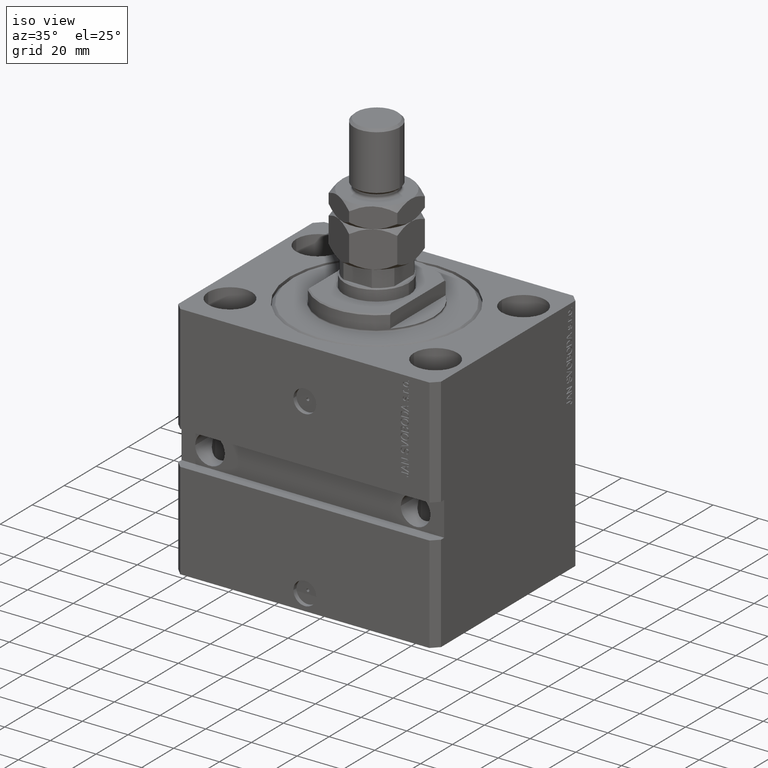
[diagram: clean part render]
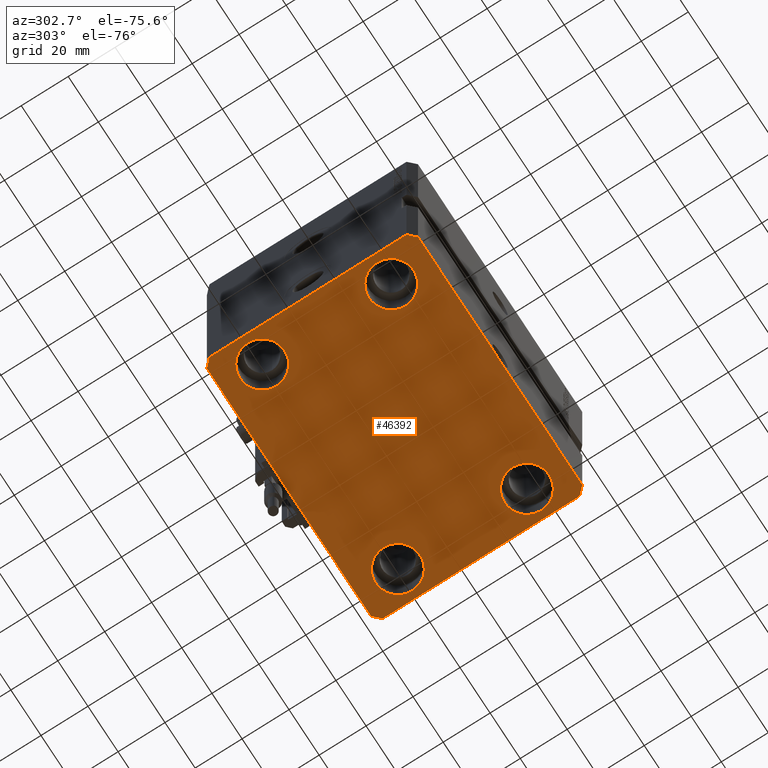
[diagram: tour spotlight — one face highlighted and labeled with its STEP entity id]
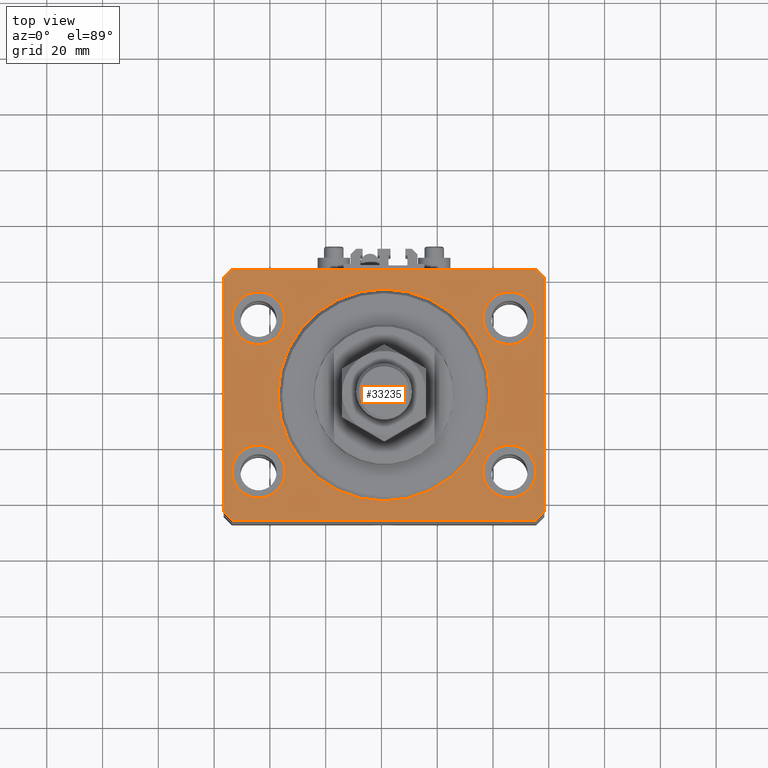
[diagram: tour spotlight — one face highlighted and labeled with its STEP entity id]
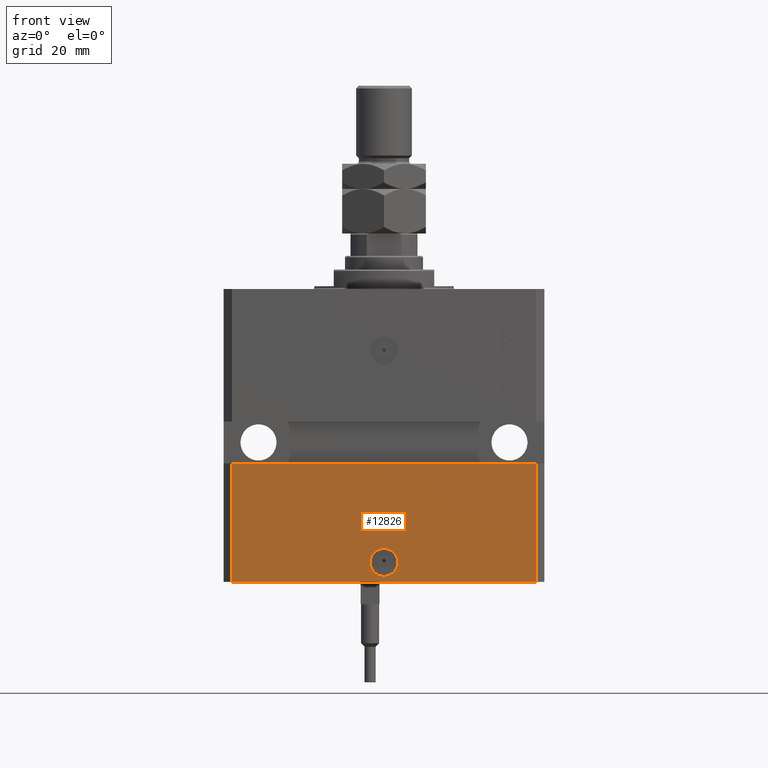
[diagram: tour spotlight — one face highlighted and labeled with its STEP entity id]
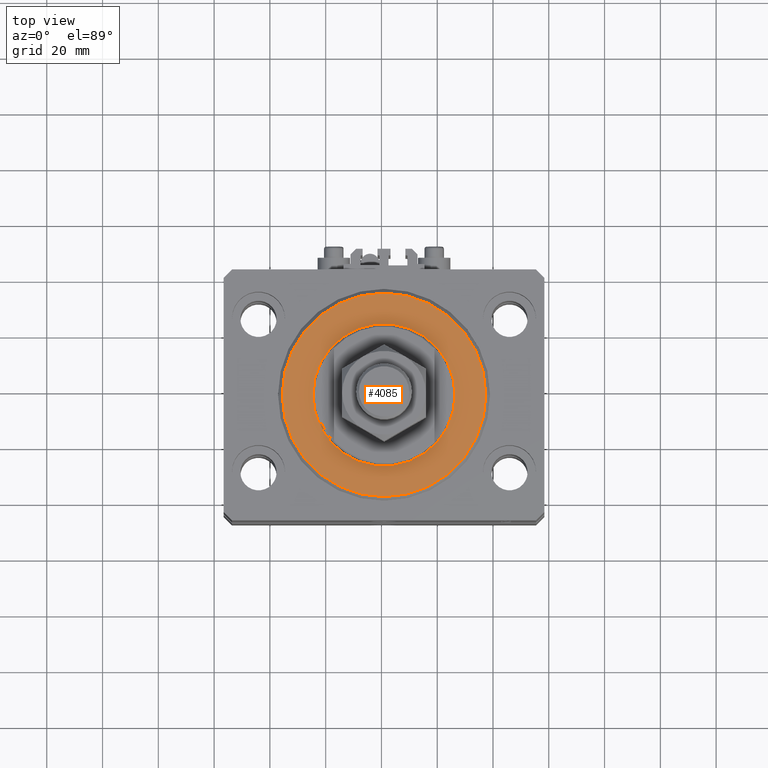
[diagram: tour spotlight — one face highlighted and labeled with its STEP entity id]
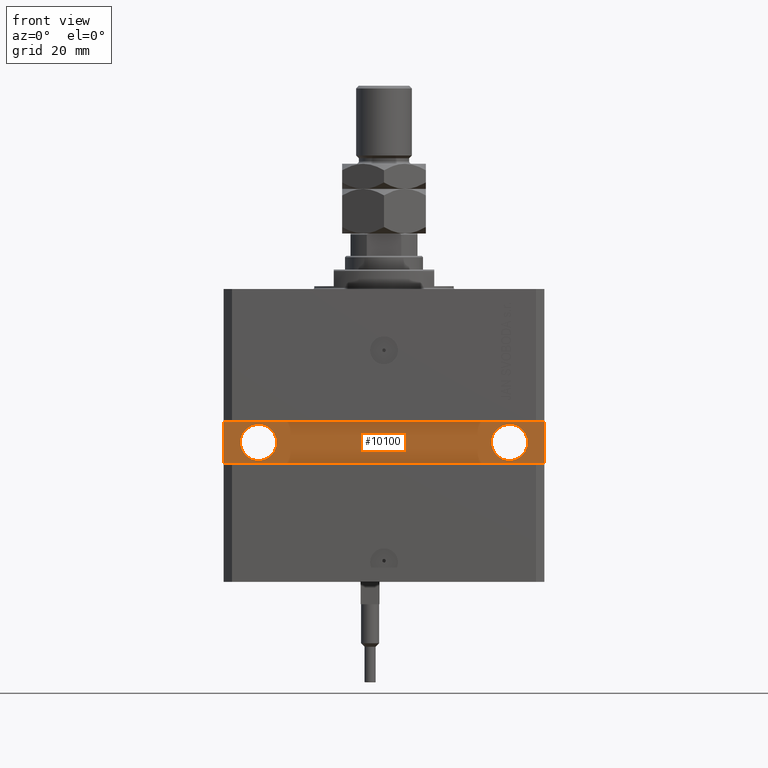
[diagram: tour spotlight — one face highlighted and labeled with its STEP entity id]
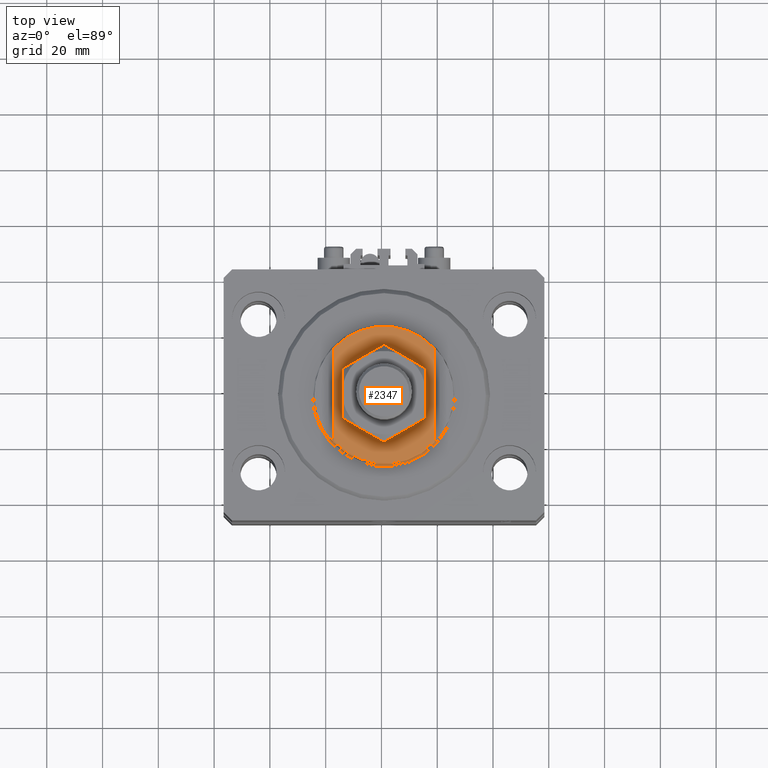
[diagram: tour spotlight — one face highlighted and labeled with its STEP entity id]
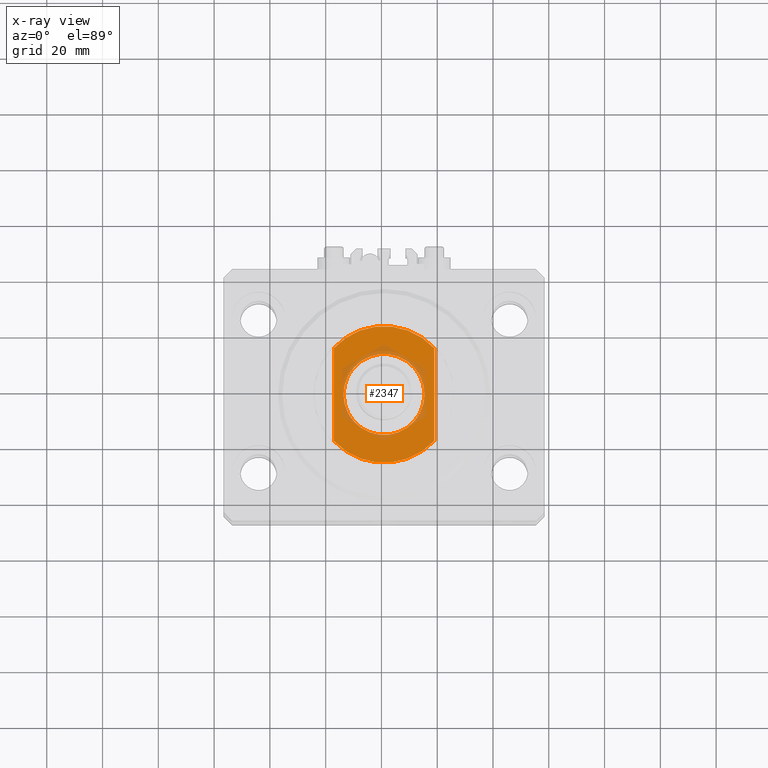
[diagram: x-ray of the same camera — body ghosted, this tour face saturated]
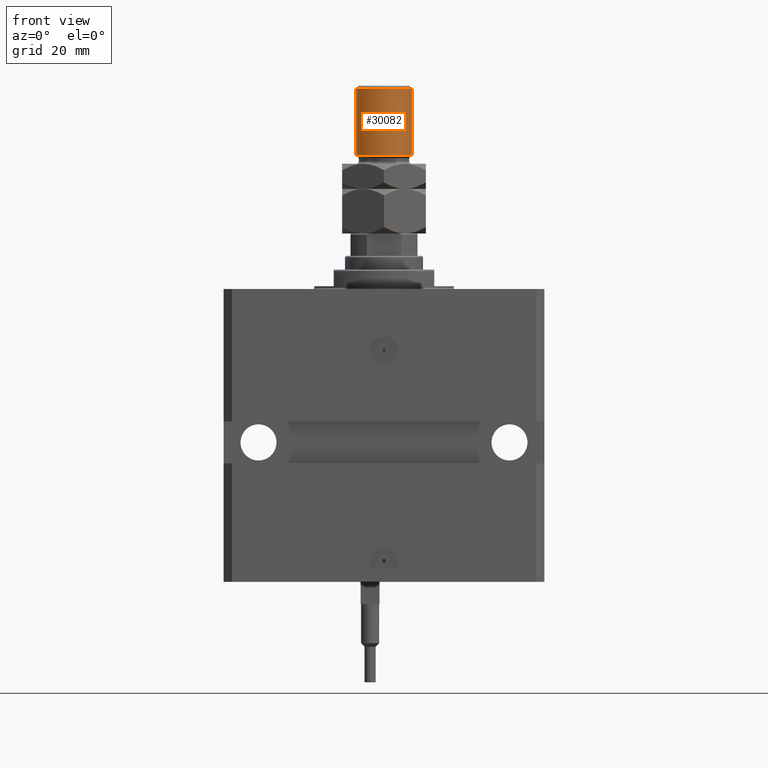
[diagram: tour spotlight — one face highlighted and labeled with its STEP entity id]
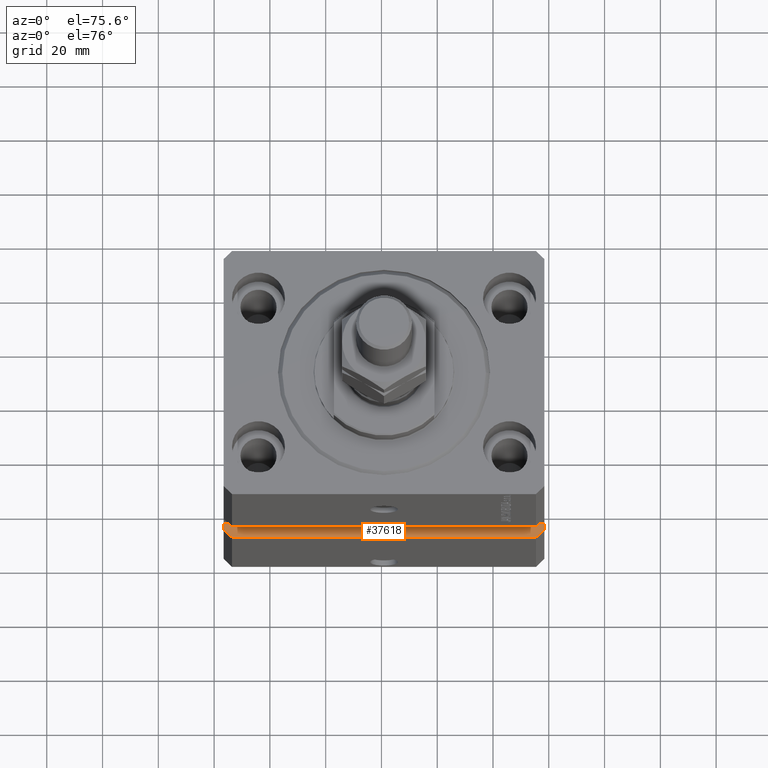
[diagram: tour spotlight — one face highlighted and labeled with its STEP entity id]
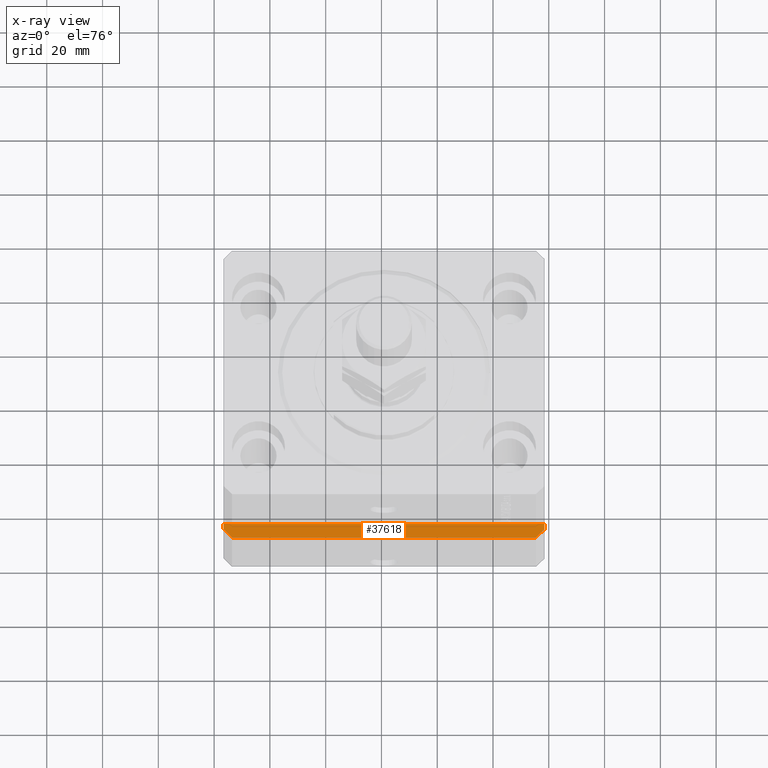
[diagram: x-ray of the same camera — body ghosted, this tour face saturated]
A machine part: a face-by-face anatomy tour. The part has 1182 B-rep faces; the first image is the clean iso view, then the 8 largest visible faces are spotlighted one at a time (largest first), each with its STEP entity span.

Face 1 — auxiliary view, entity #46392. In plain terms, the highlighted planar face has unit normal (0, 0, 1).
Definition (entity closure, byte-faithful):
#28 = DIRECTION ( 'NONE',  ( -2.478176394252581141E-16, -1.000000000000000000, 0.000000000000000000 ) ) ;
#351 = CARTESIAN_POINT ( 'NONE',  ( 57.50000000000000711, -41.99999999999998579, -105.0000000000000000 ) ) ;
#429 = ORIENTED_EDGE ( 'NONE', *, *, #7280, .T. ) ;
#500 = CARTESIAN_POINT ( 'NONE',  ( -45.00000000000000000, 27.50000000000000355, -105.0000000000000000 ) ) ;
#968 = ORIENTED_EDGE ( 'NONE', *, *, #12363, .F. ) ;
#1424 = FACE_BOUND ( 'NONE', #49898, .T. ) ;
#1895 = VECTOR ( 'NONE', #7517, 999.9999999999998863 ) ;
#2551 = VERTEX_POINT ( 'NONE', #29872 ) ;
#2734 = ORIENTED_EDGE ( 'NONE', *, *, #48735, .F. ) ;
#3326 = AXIS2_PLACEMENT_3D ( 'NONE', #39746, #22532, #35368 ) ;
#3352 = ORIENTED_EDGE ( 'NONE', *, *, #20850, .F. ) ;
#3429 = VECTOR ( 'NONE', #23496, 1000.000000000000114 ) ;
#3484 = EDGE_LOOP ( 'NONE', ( #22091, #8437, #31372, #3352, #4501, #968, #2734, #18427 ) ) ;
#3850 = EDGE_CURVE ( 'NONE', #12232, #40021, #37497, .T. ) ;
#3928 = LINE ( 'NONE', #23305, #10554 ) ;
#4061 = VERTEX_POINT ( 'NONE', #11378 ) ;
#4218 = CIRCLE ( 'NONE', #33087, 9.500000000000001776 ) ;
#4312 = CARTESIAN_POINT ( 'NONE',  ( -35.50000000000000000, -27.49999999999999645, -105.0000000000000000 ) ) ;
#4501 = ORIENTED_EDGE ( 'NONE', *, *, #49273, .F. ) ;
#5155 = CARTESIAN_POINT ( 'NONE',  ( -54.49999999999999289, 45.00000000000000000, -105.0000000000000000 ) ) ;
#6320 = EDGE_CURVE ( 'NONE', #20916, #7440, #25619, .T. ) ;
#6321 = EDGE_LOOP ( 'NONE', ( #15210, #40674 ) ) ;
#6904 = DIRECTION ( 'NONE',  ( 1.000000000000000000, 0.000000000000000000, 0.000000000000000000 ) ) ;
#7053 = EDGE_CURVE ( 'NONE', #2551, #49778, #4218, .T. ) ;
#7280 = EDGE_CURVE ( 'NONE', #7440, #20916, #37214, .T. ) ;
#7440 = VERTEX_POINT ( 'NONE', #4312 ) ;
#7517 = DIRECTION ( 'NONE',  ( -0.7071067811865376918, 0.7071067811865574537, 0.000000000000000000 ) ) ;
#7708 = EDGE_CURVE ( 'NONE', #4061, #23383, #16616, .T. ) ;
#7847 = EDGE_LOOP ( 'NONE', ( #25804, #429 ) ) ;
#8437 = ORIENTED_EDGE ( 'NONE', *, *, #48780, .F. ) ;
#8499 = AXIS2_PLACEMENT_3D ( 'NONE', #22318, #29325, #45555 ) ;
#10281 = VERTEX_POINT ( 'NONE', #49488 ) ;
#10432 = CARTESIAN_POINT ( 'NONE',  ( 35.50000000000000000, 27.50000000000001776, -105.0000000000000000 ) ) ;
#10554 = VECTOR ( 'NONE', #47541, 1000.000000000000000 ) ;
#10951 = VECTOR ( 'NONE', #28, 1000.000000000000000 ) ;
#11130 = CARTESIAN_POINT ( 'NONE',  ( -57.49999999999998579, 42.00000000000000711, -105.0000000000000000 ) ) ;
#11192 = CIRCLE ( 'NONE', #40181, 9.500000000000001776 ) ;
#11204 = LINE ( 'NONE', #38077, #47844 ) ;
#11378 = CARTESIAN_POINT ( 'NONE',  ( 54.50000000000000000, -27.49999999999999645, -105.0000000000000000 ) ) ;
#11858 = CARTESIAN_POINT ( 'NONE',  ( -57.50000000000000711, -42.00000000000000711, -105.0000000000000000 ) ) ;
#12014 = CARTESIAN_POINT ( 'NONE',  ( -54.50000000000000000, -27.49999999999999645, -105.0000000000000000 ) ) ;
#12112 = LINE ( 'NONE', #11858, #3429 ) ;
#12232 = VERTEX_POINT ( 'NONE', #50575 ) ;
#12363 = EDGE_CURVE ( 'NONE', #10281, #15042, #12112, .T. ) ;
#12504 = DIRECTION ( 'NONE',  ( -0.000000000000000000, -0.000000000000000000, 1.000000000000000000 ) ) ;
#12762 = CARTESIAN_POINT ( 'NONE',  ( 45.00000000000000000, -27.49999999999999645, -105.0000000000000000 ) ) ;
#13296 = FACE_BOUND ( 'NONE', #7847, .T. ) ;
#13679 = VECTOR ( 'NONE', #22181, 1000.000000000000000 ) ;
#14116 = ORIENTED_EDGE ( 'NONE', *, *, #20483, .T. ) ;
#14180 = CARTESIAN_POINT ( 'NONE',  ( 54.50000000000000711, -44.99999999999998579, -105.0000000000000000 ) ) ;
#14375 = VERTEX_POINT ( 'NONE', #34148 ) ;
#14489 = CIRCLE ( 'NONE', #44196, 9.500000000000001776 ) ;
#14948 = AXIS2_PLACEMENT_3D ( 'NONE', #18539, #38410, #6904 ) ;
#15042 = VERTEX_POINT ( 'NONE', #19553 ) ;
#15210 = ORIENTED_EDGE ( 'NONE', *, *, #23410, .T. ) ;
#15553 = VERTEX_POINT ( 'NONE', #10432 ) ;
#15695 = VERTEX_POINT ( 'NONE', #351 ) ;
#16616 = CIRCLE ( 'NONE', #29010, 9.500000000000001776 ) ;
#16807 = CARTESIAN_POINT ( 'NONE',  ( -57.49999999999998579, 42.00000000000000711, -105.0000000000000000 ) ) ;
#17178 = FACE_OUTER_BOUND ( 'NONE', #3484, .T. ) ;
#17803 = LINE ( 'NONE', #14180, #13679 ) ;
#17862 = CARTESIAN_POINT ( 'NONE',  ( -45.00000000000000000, 27.50000000000000355, -105.0000000000000000 ) ) ;
#18427 = ORIENTED_EDGE ( 'NONE', *, *, #33577, .F. ) ;
#18429 = CARTESIAN_POINT ( 'NONE',  ( 57.50000000000055422, 41.99999999999997868, -105.0000000000000000 ) ) ;
#18539 = CARTESIAN_POINT ( 'NONE',  ( -45.00000000000000000, -27.49999999999999645, -105.0000000000000000 ) ) ;
#18931 = CARTESIAN_POINT ( 'NONE',  ( 45.00000000000000000, 27.50000000000001776, -105.0000000000000000 ) ) ;
#19087 = EDGE_CURVE ( 'NONE', #14375, #15553, #36699, .T. ) ;
#19181 = VERTEX_POINT ( 'NONE', #18429 ) ;
#19553 = CARTESIAN_POINT ( 'NONE',  ( -54.50000000000000711, -45.00000000000000000, -105.0000000000000000 ) ) ;
#20483 = EDGE_CURVE ( 'NONE', #49778, #2551, #14489, .T. ) ;
#20850 = EDGE_CURVE ( 'NONE', #37028, #15695, #17803, .T. ) ;
#20916 = VERTEX_POINT ( 'NONE', #12014 ) ;
#22091 = ORIENTED_EDGE ( 'NONE', *, *, #3850, .F. ) ;
#22181 = DIRECTION ( 'NONE',  ( 0.7071067811865483499, 0.7071067811865466846, 0.000000000000000000 ) ) ;
#22318 = CARTESIAN_POINT ( 'NONE',  ( 45.00000000000000000, 27.50000000000001776, -105.0000000000000000 ) ) ;
#22532 = DIRECTION ( 'NONE',  ( -0.000000000000000000, -0.000000000000000000, 1.000000000000000000 ) ) ;
#23025 = ORIENTED_EDGE ( 'NONE', *, *, #48326, .T. ) ;
#23305 = CARTESIAN_POINT ( 'NONE',  ( -54.49999999999999289, 45.00000000000000000, -105.0000000000000000 ) ) ;
#23383 = VERTEX_POINT ( 'NONE', #46858 ) ;
#23410 = EDGE_CURVE ( 'NONE', #23383, #4061, #11192, .T. ) ;
#23481 = CARTESIAN_POINT ( 'NONE',  ( -54.50000000000000711, -45.00000000000000000, -105.0000000000000000 ) ) ;
#23496 = DIRECTION ( 'NONE',  ( 0.7071067811865491270, -0.7071067811865459074, 0.000000000000000000 ) ) ;
#24164 = DIRECTION ( 'NONE',  ( -0.000000000000000000, -0.000000000000000000, 1.000000000000000000 ) ) ;
#24362 = AXIS2_PLACEMENT_3D ( 'NONE', #18931, #29800, #26177 ) ;
#25619 = CIRCLE ( 'NONE', #3326, 9.500000000000001776 ) ;
#25804 = ORIENTED_EDGE ( 'NONE', *, *, #6320, .T. ) ;
#26177 = DIRECTION ( 'NONE',  ( 1.000000000000000000, 0.000000000000000000, 0.000000000000000000 ) ) ;
#26384 = DIRECTION ( 'NONE',  ( -1.000000000000000000, -2.546383084002639322E-16, 0.000000000000000000 ) ) ;
#27159 = LINE ( 'NONE', #43139, #1895 ) ;
#27489 = VECTOR ( 'NONE', #39218, 1000.000000000000000 ) ;
#27634 = DIRECTION ( 'NONE',  ( -0.000000000000000000, -0.000000000000000000, 1.000000000000000000 ) ) ;
#27887 = CARTESIAN_POINT ( 'NONE',  ( -35.50000000000000000, 27.50000000000000355, -105.0000000000000000 ) ) ;
#28638 = LINE ( 'NONE', #23481, #27489 ) ;
#29010 = AXIS2_PLACEMENT_3D ( 'NONE', #12762, #12504, #40385 ) ;
#29063 = PLANE ( 'NONE',  #31490 ) ;
#29325 = DIRECTION ( 'NONE',  ( -0.000000000000000000, -0.000000000000000000, 1.000000000000000000 ) ) ;
#29800 = DIRECTION ( 'NONE',  ( -0.000000000000000000, -0.000000000000000000, 1.000000000000000000 ) ) ;
#29872 = CARTESIAN_POINT ( 'NONE',  ( -54.50000000000000000, 27.50000000000000355, -105.0000000000000000 ) ) ;
#30843 = DIRECTION ( 'NONE',  ( 6.443258625056715108E-15, 1.000000000000000000, 0.000000000000000000 ) ) ;
#31372 = ORIENTED_EDGE ( 'NONE', *, *, #43294, .F. ) ;
#31490 = AXIS2_PLACEMENT_3D ( 'NONE', #44784, #31768, #39517 ) ;
#31563 = VERTEX_POINT ( 'NONE', #16807 ) ;
#31768 = DIRECTION ( 'NONE',  ( 0.000000000000000000, 0.000000000000000000, 1.000000000000000000 ) ) ;
#32665 = DIRECTION ( 'NONE',  ( 1.000000000000000000, 0.000000000000000000, 0.000000000000000000 ) ) ;
#33087 = AXIS2_PLACEMENT_3D ( 'NONE', #500, #27634, #38993 ) ;
#33577 = EDGE_CURVE ( 'NONE', #40021, #31563, #3928, .T. ) ;
#33869 = CARTESIAN_POINT ( 'NONE',  ( 54.50000000000058975, 45.00000000000002842, -105.0000000000000000 ) ) ;
#34117 = DIRECTION ( 'NONE',  ( -0.000000000000000000, -0.000000000000000000, 1.000000000000000000 ) ) ;
#34148 = CARTESIAN_POINT ( 'NONE',  ( 54.50000000000000000, 27.50000000000001776, -105.0000000000000000 ) ) ;
#34612 = DIRECTION ( 'NONE',  ( 1.000000000000000000, 0.000000000000000000, 0.000000000000000000 ) ) ;
#35368 = DIRECTION ( 'NONE',  ( 1.000000000000000000, 0.000000000000000000, 0.000000000000000000 ) ) ;
#35442 = VECTOR ( 'NONE', #26384, 1000.000000000000000 ) ;
#36699 = CIRCLE ( 'NONE', #24362, 9.500000000000001776 ) ;
#37028 = VERTEX_POINT ( 'NONE', #43385 ) ;
#37214 = CIRCLE ( 'NONE', #14948, 9.500000000000001776 ) ;
#37497 = LINE ( 'NONE', #33869, #35442 ) ;
#37802 = FACE_BOUND ( 'NONE', #6321, .T. ) ;
#38077 = CARTESIAN_POINT ( 'NONE',  ( 57.50000000000000711, -41.99999999999998579, -105.0000000000000000 ) ) ;
#38410 = DIRECTION ( 'NONE',  ( -0.000000000000000000, -0.000000000000000000, 1.000000000000000000 ) ) ;
#38993 = DIRECTION ( 'NONE',  ( 1.000000000000000000, 0.000000000000000000, 0.000000000000000000 ) ) ;
#39218 = DIRECTION ( 'NONE',  ( 1.000000000000000000, 1.273191542001326317E-16, 0.000000000000000000 ) ) ;
#39440 = ORIENTED_EDGE ( 'NONE', *, *, #19087, .T. ) ;
#39517 = DIRECTION ( 'NONE',  ( 1.000000000000000000, 0.000000000000000000, -0.000000000000000000 ) ) ;
#39746 = CARTESIAN_POINT ( 'NONE',  ( -45.00000000000000000, -27.49999999999999645, -105.0000000000000000 ) ) ;
#39895 = CARTESIAN_POINT ( 'NONE',  ( 45.00000000000000000, -27.49999999999999645, -105.0000000000000000 ) ) ;
#40021 = VERTEX_POINT ( 'NONE', #5155 ) ;
#40181 = AXIS2_PLACEMENT_3D ( 'NONE', #39895, #24164, #32665 ) ;
#40385 = DIRECTION ( 'NONE',  ( 1.000000000000000000, 0.000000000000000000, 0.000000000000000000 ) ) ;
#40663 = FACE_BOUND ( 'NONE', #48116, .T. ) ;
#40674 = ORIENTED_EDGE ( 'NONE', *, *, #7708, .T. ) ;
#43139 = CARTESIAN_POINT ( 'NONE',  ( 57.50000000000055422, 41.99999999999997868, -105.0000000000000000 ) ) ;
#43294 = EDGE_CURVE ( 'NONE', #15695, #19181, #11204, .T. ) ;
#43385 = CARTESIAN_POINT ( 'NONE',  ( 54.50000000000000711, -44.99999999999998579, -105.0000000000000000 ) ) ;
#44196 = AXIS2_PLACEMENT_3D ( 'NONE', #17862, #34117, #34612 ) ;
#44784 = CARTESIAN_POINT ( 'NONE',  ( 0.000000000000000000, 0.000000000000000000, -105.0000000000000000 ) ) ;
#45555 = DIRECTION ( 'NONE',  ( 1.000000000000000000, 0.000000000000000000, 0.000000000000000000 ) ) ;
#46392 = ADVANCED_FACE ( 'NONE', ( #13296, #37802, #40663, #1424, #17178 ), #29063, .F. ) ;
#46858 = CARTESIAN_POINT ( 'NONE',  ( 35.50000000000000000, -27.49999999999999645, -105.0000000000000000 ) ) ;
#47049 = ORIENTED_EDGE ( 'NONE', *, *, #7053, .T. ) ;
#47209 = CIRCLE ( 'NONE', #8499, 9.500000000000001776 ) ;
#47541 = DIRECTION ( 'NONE',  ( -0.7071067811865483499, -0.7071067811865466846, 0.000000000000000000 ) ) ;
#47844 = VECTOR ( 'NONE', #30843, 1000.000000000000000 ) ;
#48116 = EDGE_LOOP ( 'NONE', ( #23025, #39440 ) ) ;
#48326 = EDGE_CURVE ( 'NONE', #15553, #14375, #47209, .T. ) ;
#48735 = EDGE_CURVE ( 'NONE', #31563, #10281, #50873, .T. ) ;
#48780 = EDGE_CURVE ( 'NONE', #19181, #12232, #27159, .T. ) ;
#49273 = EDGE_CURVE ( 'NONE', #15042, #37028, #28638, .T. ) ;
#49488 = CARTESIAN_POINT ( 'NONE',  ( -57.50000000000000711, -42.00000000000000711, -105.0000000000000000 ) ) ;
#49778 = VERTEX_POINT ( 'NONE', #27887 ) ;
#49898 = EDGE_LOOP ( 'NONE', ( #47049, #14116 ) ) ;
#50575 = CARTESIAN_POINT ( 'NONE',  ( 54.50000000000058975, 45.00000000000002842, -105.0000000000000000 ) ) ;
#50873 = LINE ( 'NONE', #11130, #10951 ) ;

Face 2 — top view, entity #33235. In plain terms, the highlighted planar face has unit normal (0, 0, 1).
Definition (entity closure, byte-faithful):
#1405 = ORIENTED_EDGE ( 'NONE', *, *, #51072, .F. ) ;
#1611 = CIRCLE ( 'NONE', #2419, 38.00000000000000000 ) ;
#1742 = DIRECTION ( 'NONE',  ( -2.478176394252581141E-16, -1.000000000000000000, 0.000000000000000000 ) ) ;
#1994 = CARTESIAN_POINT ( 'NONE',  ( -57.49999999999998579, 42.00000000000000711, 0.000000000000000000 ) ) ;
#2419 = AXIS2_PLACEMENT_3D ( 'NONE', #31471, #50307, #11584 ) ;
#2724 = DIRECTION ( 'NONE',  ( 0.000000000000000000, 0.000000000000000000, 1.000000000000000000 ) ) ;
#2882 = CARTESIAN_POINT ( 'NONE',  ( 54.50000000000000000, -27.49999999999999645, 0.000000000000000000 ) ) ;
#3221 = ORIENTED_EDGE ( 'NONE', *, *, #45786, .F. ) ;
#3385 = VERTEX_POINT ( 'NONE', #33990 ) ;
#3469 = VECTOR ( 'NONE', #16453, 1000.000000000000000 ) ;
#3997 = AXIS2_PLACEMENT_3D ( 'NONE', #33299, #49024, #25061 ) ;
#4245 = FACE_BOUND ( 'NONE', #37477, .T. ) ;
#4433 = CARTESIAN_POINT ( 'NONE',  ( 54.50000000000000711, -44.99999999999998579, 0.000000000000000000 ) ) ;
#6485 = DIRECTION ( 'NONE',  ( -1.000000000000000000, -2.546383084002639322E-16, 0.000000000000000000 ) ) ;
#7368 = CARTESIAN_POINT ( 'NONE',  ( 57.50000000000055422, 41.99999999999997868, 0.000000000000000000 ) ) ;
#7563 = CIRCLE ( 'NONE', #24919, 9.500000000000001776 ) ;
#8053 = VECTOR ( 'NONE', #16713, 1000.000000000000000 ) ;
#8178 = VERTEX_POINT ( 'NONE', #26364 ) ;
#8350 = VECTOR ( 'NONE', #31293, 1000.000000000000114 ) ;
#8838 = VECTOR ( 'NONE', #6485, 1000.000000000000000 ) ;
#9424 = DIRECTION ( 'NONE',  ( 0.000000000000000000, 0.000000000000000000, 1.000000000000000000 ) ) ;
#9437 = EDGE_CURVE ( 'NONE', #3385, #50975, #31450, .T. ) ;
#9667 = AXIS2_PLACEMENT_3D ( 'NONE', #30753, #34876, #46733 ) ;
#10166 = CARTESIAN_POINT ( 'NONE',  ( 45.00000000000000000, 27.50000000000001776, 0.000000000000000000 ) ) ;
#10171 = DIRECTION ( 'NONE',  ( 1.000000000000000000, 0.000000000000000000, 0.000000000000000000 ) ) ;
#10461 = VERTEX_POINT ( 'NONE', #28325 ) ;
#11405 = LINE ( 'NONE', #4433, #18155 ) ;
#11584 = DIRECTION ( 'NONE',  ( 1.000000000000000000, 0.000000000000000000, 0.000000000000000000 ) ) ;
#11738 = FACE_BOUND ( 'NONE', #43819, .T. ) ;
#12324 = CARTESIAN_POINT ( 'NONE',  ( 54.50000000000058975, 45.00000000000002842, 0.000000000000000000 ) ) ;
#12431 = CARTESIAN_POINT ( 'NONE',  ( -57.50000000000000711, -42.00000000000000711, 0.000000000000000000 ) ) ;
#12461 = CARTESIAN_POINT ( 'NONE',  ( 38.00000000000000000, 0.000000000000000000, 0.000000000000000000 ) ) ;
#12990 = CARTESIAN_POINT ( 'NONE',  ( 54.50000000000000000, 27.50000000000001776, 0.000000000000000000 ) ) ;
#13161 = DIRECTION ( 'NONE',  ( 1.000000000000000000, 0.000000000000000000, 0.000000000000000000 ) ) ;
#13666 = CARTESIAN_POINT ( 'NONE',  ( -45.00000000000000000, -27.49999999999999645, 0.000000000000000000 ) ) ;
#13732 = ORIENTED_EDGE ( 'NONE', *, *, #41799, .T. ) ;
#14139 = CARTESIAN_POINT ( 'NONE',  ( -35.50000000000000000, 27.50000000000000355, 0.000000000000000000 ) ) ;
#14219 = CARTESIAN_POINT ( 'NONE',  ( -38.00000000000000000, 4.653657836759941941E-15, 0.000000000000000000 ) ) ;
#14311 = DIRECTION ( 'NONE',  ( 0.000000000000000000, 0.000000000000000000, 1.000000000000000000 ) ) ;
#14766 = VERTEX_POINT ( 'NONE', #48748 ) ;
#15115 = DIRECTION ( 'NONE',  ( 1.000000000000000000, 0.000000000000000000, 0.000000000000000000 ) ) ;
#15238 = ORIENTED_EDGE ( 'NONE', *, *, #34744, .F. ) ;
#15748 = VERTEX_POINT ( 'NONE', #12990 ) ;
#16151 = CARTESIAN_POINT ( 'NONE',  ( 54.50000000000000711, -44.99999999999998579, 0.000000000000000000 ) ) ;
#16439 = VERTEX_POINT ( 'NONE', #30838 ) ;
#16453 = DIRECTION ( 'NONE',  ( -0.7071067811865483499, -0.7071067811865466846, 0.000000000000000000 ) ) ;
#16713 = DIRECTION ( 'NONE',  ( 1.000000000000000000, 1.273191542001326317E-16, 0.000000000000000000 ) ) ;
#16936 = EDGE_CURVE ( 'NONE', #50975, #19514, #33068, .T. ) ;
#17318 = DIRECTION ( 'NONE',  ( -0.7071067811865376918, 0.7071067811865574537, 0.000000000000000000 ) ) ;
#17381 = VERTEX_POINT ( 'NONE', #14139 ) ;
#17569 = DIRECTION ( 'NONE',  ( 0.000000000000000000, 0.000000000000000000, 1.000000000000000000 ) ) ;
#17783 = DIRECTION ( 'NONE',  ( 1.000000000000000000, 0.000000000000000000, 0.000000000000000000 ) ) ;
#18155 = VECTOR ( 'NONE', #39294, 1000.000000000000000 ) ;
#18186 = CARTESIAN_POINT ( 'NONE',  ( 45.00000000000000000, -27.49999999999999645, 0.000000000000000000 ) ) ;
#19514 = VERTEX_POINT ( 'NONE', #12324 ) ;
#19674 = AXIS2_PLACEMENT_3D ( 'NONE', #13666, #43891, #13161 ) ;
#19755 = FACE_BOUND ( 'NONE', #43349, .T. ) ;
#19760 = CARTESIAN_POINT ( 'NONE',  ( -57.49999999999998579, 42.00000000000000711, 0.000000000000000000 ) ) ;
#20004 = EDGE_CURVE ( 'NONE', #15748, #20768, #34251, .T. ) ;
#20015 = CARTESIAN_POINT ( 'NONE',  ( 0.000000000000000000, 0.000000000000000000, 0.000000000000000000 ) ) ;
#20596 = CARTESIAN_POINT ( 'NONE',  ( -54.50000000000000711, -45.00000000000000000, 0.000000000000000000 ) ) ;
#20768 = VERTEX_POINT ( 'NONE', #41791 ) ;
#21441 = CARTESIAN_POINT ( 'NONE',  ( 45.00000000000000000, 27.50000000000001776, 0.000000000000000000 ) ) ;
#21783 = VERTEX_POINT ( 'NONE', #14219 ) ;
#23631 = CARTESIAN_POINT ( 'NONE',  ( 45.00000000000000000, -27.49999999999999645, 0.000000000000000000 ) ) ;
#24158 = EDGE_CURVE ( 'NONE', #17381, #10461, #31930, .T. ) ;
#24477 = LINE ( 'NONE', #20596, #8053 ) ;
#24579 = VERTEX_POINT ( 'NONE', #12461 ) ;
#24919 = AXIS2_PLACEMENT_3D ( 'NONE', #21441, #17569, #45174 ) ;
#25023 = CARTESIAN_POINT ( 'NONE',  ( -35.50000000000000000, -27.49999999999999645, 0.000000000000000000 ) ) ;
#25061 = DIRECTION ( 'NONE',  ( 1.000000000000000000, 0.000000000000000000, 0.000000000000000000 ) ) ;
#25397 = LINE ( 'NONE', #41863, #8838 ) ;
#26274 = CIRCLE ( 'NONE', #3997, 9.500000000000001776 ) ;
#26364 = CARTESIAN_POINT ( 'NONE',  ( -57.50000000000000711, -42.00000000000000711, 0.000000000000000000 ) ) ;
#26485 = CARTESIAN_POINT ( 'NONE',  ( 0.000000000000000000, 0.000000000000000000, 0.000000000000000000 ) ) ;
#26522 = CIRCLE ( 'NONE', #28163, 38.00000000000000000 ) ;
#26574 = CARTESIAN_POINT ( 'NONE',  ( 57.50000000000000711, -41.99999999999998579, 0.000000000000000000 ) ) ;
#27258 = DIRECTION ( 'NONE',  ( 1.000000000000000000, 0.000000000000000000, 0.000000000000000000 ) ) ;
#27757 = FACE_BOUND ( 'NONE', #47315, .T. ) ;
#27767 = EDGE_LOOP ( 'NONE', ( #44475, #38727 ) ) ;
#28163 = AXIS2_PLACEMENT_3D ( 'NONE', #26485, #2724, #15115 ) ;
#28188 = EDGE_CURVE ( 'NONE', #24579, #21783, #1611, .T. ) ;
#28325 = CARTESIAN_POINT ( 'NONE',  ( -54.50000000000000000, 27.50000000000000355, 0.000000000000000000 ) ) ;
#28529 = ORIENTED_EDGE ( 'NONE', *, *, #28188, .F. ) ;
#29092 = ORIENTED_EDGE ( 'NONE', *, *, #50478, .F. ) ;
#29907 = AXIS2_PLACEMENT_3D ( 'NONE', #23631, #35253, #27258 ) ;
#30427 = ORIENTED_EDGE ( 'NONE', *, *, #45224, .T. ) ;
#30592 = VERTEX_POINT ( 'NONE', #33494 ) ;
#30753 = CARTESIAN_POINT ( 'NONE',  ( -45.00000000000000000, 27.50000000000000355, 0.000000000000000000 ) ) ;
#30838 = CARTESIAN_POINT ( 'NONE',  ( 35.50000000000000000, -27.49999999999999645, 0.000000000000000000 ) ) ;
#30994 = ORIENTED_EDGE ( 'NONE', *, *, #20004, .F. ) ;
#31116 = FACE_BOUND ( 'NONE', #27767, .T. ) ;
#31179 = LINE ( 'NONE', #47419, #3469 ) ;
#31293 = DIRECTION ( 'NONE',  ( 0.7071067811865491270, -0.7071067811865459074, 0.000000000000000000 ) ) ;
#31450 = LINE ( 'NONE', #26574, #35623 ) ;
#31471 = CARTESIAN_POINT ( 'NONE',  ( 0.000000000000000000, 0.000000000000000000, 0.000000000000000000 ) ) ;
#31930 = CIRCLE ( 'NONE', #9667, 9.500000000000001776 ) ;
#31945 = EDGE_CURVE ( 'NONE', #19514, #48763, #25397, .T. ) ;
#32103 = VERTEX_POINT ( 'NONE', #2882 ) ;
#32137 = FACE_OUTER_BOUND ( 'NONE', #42962, .T. ) ;
#32345 = CIRCLE ( 'NONE', #29907, 9.500000000000001776 ) ;
#33068 = LINE ( 'NONE', #38207, #46507 ) ;
#33235 = ADVANCED_FACE ( 'NONE', ( #19755, #11738, #27757, #31116, #4245, #32137 ), #50707, .T. ) ;
#33299 = CARTESIAN_POINT ( 'NONE',  ( -45.00000000000000000, 27.50000000000000355, 0.000000000000000000 ) ) ;
#33494 = CARTESIAN_POINT ( 'NONE',  ( -54.50000000000000000, -27.49999999999999645, 0.000000000000000000 ) ) ;
#33782 = DIRECTION ( 'NONE',  ( 0.000000000000000000, 0.000000000000000000, 1.000000000000000000 ) ) ;
#33812 = EDGE_CURVE ( 'NONE', #14766, #46279, #24477, .T. ) ;
#33990 = CARTESIAN_POINT ( 'NONE',  ( 57.50000000000000711, -41.99999999999998579, 0.000000000000000000 ) ) ;
#34251 = CIRCLE ( 'NONE', #45769, 9.500000000000001776 ) ;
#34744 = EDGE_CURVE ( 'NONE', #30592, #49308, #46052, .T. ) ;
#34750 = EDGE_CURVE ( 'NONE', #10461, #17381, #26274, .T. ) ;
#34804 = AXIS2_PLACEMENT_3D ( 'NONE', #37413, #33782, #17783 ) ;
#34876 = DIRECTION ( 'NONE',  ( 0.000000000000000000, 0.000000000000000000, 1.000000000000000000 ) ) ;
#35253 = DIRECTION ( 'NONE',  ( 0.000000000000000000, 0.000000000000000000, 1.000000000000000000 ) ) ;
#35623 = VECTOR ( 'NONE', #46432, 1000.000000000000000 ) ;
#35725 = ORIENTED_EDGE ( 'NONE', *, *, #16936, .T. ) ;
#37206 = ORIENTED_EDGE ( 'NONE', *, *, #33812, .T. ) ;
#37413 = CARTESIAN_POINT ( 'NONE',  ( -45.00000000000000000, -27.49999999999999645, 0.000000000000000000 ) ) ;
#37477 = EDGE_LOOP ( 'NONE', ( #28529, #3221 ) ) ;
#38207 = CARTESIAN_POINT ( 'NONE',  ( 57.50000000000055422, 41.99999999999997868, 0.000000000000000000 ) ) ;
#38581 = AXIS2_PLACEMENT_3D ( 'NONE', #20015, #50967, #43230 ) ;
#38727 = ORIENTED_EDGE ( 'NONE', *, *, #34750, .F. ) ;
#38768 = CARTESIAN_POINT ( 'NONE',  ( -54.49999999999999289, 45.00000000000000000, 0.000000000000000000 ) ) ;
#39294 = DIRECTION ( 'NONE',  ( 0.7071067811865483499, 0.7071067811865466846, 0.000000000000000000 ) ) ;
#39741 = CIRCLE ( 'NONE', #34804, 9.500000000000001776 ) ;
#39748 = AXIS2_PLACEMENT_3D ( 'NONE', #18186, #9424, #10171 ) ;
#40055 = LINE ( 'NONE', #12431, #8350 ) ;
#40601 = VECTOR ( 'NONE', #1742, 1000.000000000000000 ) ;
#40803 = ORIENTED_EDGE ( 'NONE', *, *, #46986, .T. ) ;
#41700 = ORIENTED_EDGE ( 'NONE', *, *, #46368, .F. ) ;
#41791 = CARTESIAN_POINT ( 'NONE',  ( 35.50000000000000000, 27.50000000000001776, 0.000000000000000000 ) ) ;
#41799 = EDGE_CURVE ( 'NONE', #46279, #3385, #11405, .T. ) ;
#41863 = CARTESIAN_POINT ( 'NONE',  ( 54.50000000000058975, 45.00000000000002842, 0.000000000000000000 ) ) ;
#41913 = DIRECTION ( 'NONE',  ( 1.000000000000000000, 0.000000000000000000, 0.000000000000000000 ) ) ;
#42962 = EDGE_LOOP ( 'NONE', ( #47872, #49013, #40803, #30427, #37206, #13732, #45006, #35725 ) ) ;
#43010 = CIRCLE ( 'NONE', #39748, 9.500000000000001776 ) ;
#43230 = DIRECTION ( 'NONE',  ( 1.000000000000000000, 0.000000000000000000, -0.000000000000000000 ) ) ;
#43349 = EDGE_LOOP ( 'NONE', ( #29092, #15238 ) ) ;
#43819 = EDGE_LOOP ( 'NONE', ( #1405, #41700 ) ) ;
#43891 = DIRECTION ( 'NONE',  ( 0.000000000000000000, 0.000000000000000000, 1.000000000000000000 ) ) ;
#44475 = ORIENTED_EDGE ( 'NONE', *, *, #24158, .F. ) ;
#45006 = ORIENTED_EDGE ( 'NONE', *, *, #9437, .T. ) ;
#45096 = LINE ( 'NONE', #1994, #40601 ) ;
#45174 = DIRECTION ( 'NONE',  ( 1.000000000000000000, 0.000000000000000000, 0.000000000000000000 ) ) ;
#45224 = EDGE_CURVE ( 'NONE', #8178, #14766, #40055, .T. ) ;
#45769 = AXIS2_PLACEMENT_3D ( 'NONE', #10166, #14311, #41913 ) ;
#45786 = EDGE_CURVE ( 'NONE', #21783, #24579, #26522, .T. ) ;
#46052 = CIRCLE ( 'NONE', #19674, 9.500000000000001776 ) ;
#46166 = EDGE_CURVE ( 'NONE', #20768, #15748, #7563, .T. ) ;
#46279 = VERTEX_POINT ( 'NONE', #16151 ) ;
#46368 = EDGE_CURVE ( 'NONE', #16439, #32103, #43010, .T. ) ;
#46432 = DIRECTION ( 'NONE',  ( 6.443258625056715108E-15, 1.000000000000000000, 0.000000000000000000 ) ) ;
#46507 = VECTOR ( 'NONE', #17318, 999.9999999999998863 ) ;
#46526 = ORIENTED_EDGE ( 'NONE', *, *, #46166, .F. ) ;
#46733 = DIRECTION ( 'NONE',  ( 1.000000000000000000, 0.000000000000000000, 0.000000000000000000 ) ) ;
#46986 = EDGE_CURVE ( 'NONE', #51040, #8178, #45096, .T. ) ;
#47315 = EDGE_LOOP ( 'NONE', ( #30994, #46526 ) ) ;
#47419 = CARTESIAN_POINT ( 'NONE',  ( -54.49999999999999289, 45.00000000000000000, 0.000000000000000000 ) ) ;
#47872 = ORIENTED_EDGE ( 'NONE', *, *, #31945, .T. ) ;
#48748 = CARTESIAN_POINT ( 'NONE',  ( -54.50000000000000711, -45.00000000000000000, 0.000000000000000000 ) ) ;
#48763 = VERTEX_POINT ( 'NONE', #38768 ) ;
#49013 = ORIENTED_EDGE ( 'NONE', *, *, #50703, .T. ) ;
#49024 = DIRECTION ( 'NONE',  ( 0.000000000000000000, 0.000000000000000000, 1.000000000000000000 ) ) ;
#49308 = VERTEX_POINT ( 'NONE', #25023 ) ;
#50307 = DIRECTION ( 'NONE',  ( 0.000000000000000000, 0.000000000000000000, 1.000000000000000000 ) ) ;
#50478 = EDGE_CURVE ( 'NONE', #49308, #30592, #39741, .T. ) ;
#50703 = EDGE_CURVE ( 'NONE', #48763, #51040, #31179, .T. ) ;
#50707 = PLANE ( 'NONE',  #38581 ) ;
#50967 = DIRECTION ( 'NONE',  ( 0.000000000000000000, 0.000000000000000000, 1.000000000000000000 ) ) ;
#50975 = VERTEX_POINT ( 'NONE', #7368 ) ;
#51040 = VERTEX_POINT ( 'NONE', #19760 ) ;
#51072 = EDGE_CURVE ( 'NONE', #32103, #16439, #32345, .T. ) ;

Face 3 — front view, entity #12826. In plain terms, the highlighted planar face has unit normal (0, -1, 0).
Definition (entity closure, byte-faithful):
#475 = DIRECTION ( 'NONE',  ( 1.000000000000000000, 0.000000000000000000, 0.000000000000000000 ) ) ;
#1854 = CIRCLE ( 'NONE', #15049, 5.000000000000006217 ) ;
#2512 = CARTESIAN_POINT ( 'NONE',  ( 5.729361939005967538E-15, -44.99999999999999289, -97.99999999999998579 ) ) ;
#3357 = VECTOR ( 'NONE', #37830, 1000.000000000000000 ) ;
#6158 = ORIENTED_EDGE ( 'NONE', *, *, #49273, .T. ) ;
#6335 = CARTESIAN_POINT ( 'NONE',  ( -54.50000000000000711, -45.00000000000000000, -62.50000000000000000 ) ) ;
#8736 = DIRECTION ( 'NONE',  ( 1.273191542001326317E-16, -1.000000000000000000, 0.000000000000000000 ) ) ;
#10757 = DIRECTION ( 'NONE',  ( 0.000000000000000000, 0.000000000000000000, 1.000000000000000000 ) ) ;
#12091 = CARTESIAN_POINT ( 'NONE',  ( 5.729361939005967538E-15, -44.99999999999999289, -97.99999999999998579 ) ) ;
#12394 = CARTESIAN_POINT ( 'NONE',  ( -5.000000000000000000, -44.99999999999999289, -97.99999999999998579 ) ) ;
#12826 = ADVANCED_FACE ( 'NONE', ( #23729, #16235 ), #39213, .T. ) ;
#12882 = EDGE_CURVE ( 'NONE', #35942, #46535, #1854, .T. ) ;
#15042 = VERTEX_POINT ( 'NONE', #19553 ) ;
#15049 = AXIS2_PLACEMENT_3D ( 'NONE', #12091, #35859, #475 ) ;
#15660 = LINE ( 'NONE', #42001, #35408 ) ;
#16235 = FACE_OUTER_BOUND ( 'NONE', #20501, .T. ) ;
#16832 = CIRCLE ( 'NONE', #43194, 5.000000000000006217 ) ;
#17384 = EDGE_CURVE ( 'NONE', #46535, #35942, #16832, .T. ) ;
#18526 = ORIENTED_EDGE ( 'NONE', *, *, #12882, .F. ) ;
#19553 = CARTESIAN_POINT ( 'NONE',  ( -54.50000000000000711, -45.00000000000000000, -105.0000000000000000 ) ) ;
#20365 = DIRECTION ( 'NONE',  ( 1.000000000000000000, 1.273191542001326317E-16, 0.000000000000000000 ) ) ;
#20501 = EDGE_LOOP ( 'NONE', ( #28987, #48200, #6158, #28724 ) ) ;
#23481 = CARTESIAN_POINT ( 'NONE',  ( -54.50000000000000711, -45.00000000000000000, -105.0000000000000000 ) ) ;
#23729 = FACE_BOUND ( 'NONE', #25994, .T. ) ;
#25219 = LINE ( 'NONE', #45570, #3357 ) ;
#25994 = EDGE_LOOP ( 'NONE', ( #18526, #42803 ) ) ;
#27489 = VECTOR ( 'NONE', #39218, 1000.000000000000000 ) ;
#28448 = EDGE_CURVE ( 'NONE', #15042, #33157, #15660, .T. ) ;
#28638 = LINE ( 'NONE', #23481, #27489 ) ;
#28724 = ORIENTED_EDGE ( 'NONE', *, *, #44827, .T. ) ;
#28987 = ORIENTED_EDGE ( 'NONE', *, *, #47443, .F. ) ;
#29746 = VERTEX_POINT ( 'NONE', #48365 ) ;
#30143 = DIRECTION ( 'NONE',  ( 1.000000000000000000, 0.000000000000000000, 0.000000000000000000 ) ) ;
#30812 = CARTESIAN_POINT ( 'NONE',  ( 5.000000000000012434, -44.99999999999999289, -97.99999999999998579 ) ) ;
#32493 = CARTESIAN_POINT ( 'NONE',  ( -54.50000000000000711, -45.00000000000000000, -105.0000000000000000 ) ) ;
#33157 = VERTEX_POINT ( 'NONE', #6335 ) ;
#35213 = CARTESIAN_POINT ( 'NONE',  ( -57.50000000000000711, -45.00000000000000000, -62.50000000000000000 ) ) ;
#35408 = VECTOR ( 'NONE', #10757, 1000.000000000000000 ) ;
#35859 = DIRECTION ( 'NONE',  ( 1.176083712526788232E-16, -1.000000000000000000, 0.000000000000000000 ) ) ;
#35942 = VERTEX_POINT ( 'NONE', #30812 ) ;
#36486 = VECTOR ( 'NONE', #50929, 1000.000000000000000 ) ;
#37028 = VERTEX_POINT ( 'NONE', #43385 ) ;
#37324 = AXIS2_PLACEMENT_3D ( 'NONE', #32493, #8736, #20365 ) ;
#37830 = DIRECTION ( 'NONE',  ( 0.000000000000000000, 0.000000000000000000, 1.000000000000000000 ) ) ;
#38576 = LINE ( 'NONE', #35213, #36486 ) ;
#39213 = PLANE ( 'NONE',  #37324 ) ;
#39218 = DIRECTION ( 'NONE',  ( 1.000000000000000000, 1.273191542001326317E-16, 0.000000000000000000 ) ) ;
#42001 = CARTESIAN_POINT ( 'NONE',  ( -54.50000000000000711, -45.00000000000000000, -105.0000000000000000 ) ) ;
#42803 = ORIENTED_EDGE ( 'NONE', *, *, #17384, .F. ) ;
#43194 = AXIS2_PLACEMENT_3D ( 'NONE', #2512, #44871, #30143 ) ;
#43385 = CARTESIAN_POINT ( 'NONE',  ( 54.50000000000000711, -44.99999999999998579, -105.0000000000000000 ) ) ;
#44827 = EDGE_CURVE ( 'NONE', #37028, #29746, #25219, .T. ) ;
#44871 = DIRECTION ( 'NONE',  ( 1.176083712526788232E-16, -1.000000000000000000, 0.000000000000000000 ) ) ;
#45570 = CARTESIAN_POINT ( 'NONE',  ( 54.50000000000000711, -44.99999999999998579, -105.0000000000000000 ) ) ;
#46535 = VERTEX_POINT ( 'NONE', #12394 ) ;
#47443 = EDGE_CURVE ( 'NONE', #33157, #29746, #38576, .T. ) ;
#48200 = ORIENTED_EDGE ( 'NONE', *, *, #28448, .F. ) ;
#48365 = CARTESIAN_POINT ( 'NONE',  ( 54.49999999999997868, -44.99999999999998579, -62.50000000000000000 ) ) ;
#49273 = EDGE_CURVE ( 'NONE', #15042, #37028, #28638, .T. ) ;
#50929 = DIRECTION ( 'NONE',  ( 1.000000000000000000, 1.206764157201257045E-16, 0.000000000000000000 ) ) ;

Face 4 — top view, entity #4085. In plain terms, the highlighted planar face has unit normal (0, 0, -1).
Definition (entity closure, byte-faithful):
#280 = DIRECTION ( 'NONE',  ( 0.000000000000000000, 0.000000000000000000, 1.000000000000000000 ) ) ;
#789 = FACE_BOUND ( 'NONE', #27750, .T. ) ;
#2044 = EDGE_CURVE ( 'NONE', #39811, #20823, #20407, .T. ) ;
#4085 = ADVANCED_FACE ( 'NONE', ( #789, #40026 ), #44155, .F. ) ;
#6699 = VERTEX_POINT ( 'NONE', #41936 ) ;
#7287 = EDGE_LOOP ( 'NONE', ( #35290, #32542 ) ) ;
#8019 = AXIS2_PLACEMENT_3D ( 'NONE', #26590, #50556, #11579 ) ;
#8749 = DIRECTION ( 'NONE',  ( 1.000000000000000000, 0.000000000000000000, 0.000000000000000000 ) ) ;
#8789 = DIRECTION ( 'NONE',  ( 0.000000000000000000, 0.000000000000000000, 1.000000000000000000 ) ) ;
#9313 = CIRCLE ( 'NONE', #14245, 25.50000000000000355 ) ;
#10333 = ORIENTED_EDGE ( 'NONE', *, *, #32376, .T. ) ;
#10698 = AXIS2_PLACEMENT_3D ( 'NONE', #36685, #8789, #14125 ) ;
#11579 = DIRECTION ( 'NONE',  ( 1.000000000000000000, 0.000000000000000000, 0.000000000000000000 ) ) ;
#14125 = DIRECTION ( 'NONE',  ( 1.000000000000000000, 0.000000000000000000, -0.000000000000000000 ) ) ;
#14245 = AXIS2_PLACEMENT_3D ( 'NONE', #35659, #280, #31780 ) ;
#14736 = DIRECTION ( 'NONE',  ( 1.000000000000000000, 0.000000000000000000, 0.000000000000000000 ) ) ;
#14753 = ORIENTED_EDGE ( 'NONE', *, *, #47984, .T. ) ;
#20407 = CIRCLE ( 'NONE', #49238, 36.50000000000000000 ) ;
#20823 = VERTEX_POINT ( 'NONE', #31139 ) ;
#25425 = CARTESIAN_POINT ( 'NONE',  ( 25.50000000000000355, 0.000000000000000000, 2.168404344971008868E-16 ) ) ;
#26590 = CARTESIAN_POINT ( 'NONE',  ( 0.000000000000000000, 0.000000000000000000, 0.000000000000000000 ) ) ;
#27750 = EDGE_LOOP ( 'NONE', ( #10333, #14753 ) ) ;
#27879 = DIRECTION ( 'NONE',  ( -0.000000000000000000, -0.000000000000000000, -1.000000000000000000 ) ) ;
#31139 = CARTESIAN_POINT ( 'NONE',  ( -36.50000000000000000, 4.561809326823889791E-15, 0.000000000000000000 ) ) ;
#31502 = CARTESIAN_POINT ( 'NONE',  ( 36.50000000000000000, 0.000000000000000000, 0.000000000000000000 ) ) ;
#31780 = DIRECTION ( 'NONE',  ( 1.000000000000000000, 0.000000000000000000, 0.000000000000000000 ) ) ;
#32376 = EDGE_CURVE ( 'NONE', #42385, #6699, #45936, .T. ) ;
#32542 = ORIENTED_EDGE ( 'NONE', *, *, #44480, .T. ) ;
#35290 = ORIENTED_EDGE ( 'NONE', *, *, #2044, .T. ) ;
#35659 = CARTESIAN_POINT ( 'NONE',  ( 0.000000000000000000, 0.000000000000000000, 0.000000000000000000 ) ) ;
#36685 = CARTESIAN_POINT ( 'NONE',  ( 0.000000000000000000, 0.000000000000000000, 0.000000000000000000 ) ) ;
#38741 = CARTESIAN_POINT ( 'NONE',  ( 0.000000000000000000, 0.000000000000000000, 0.000000000000000000 ) ) ;
#39639 = AXIS2_PLACEMENT_3D ( 'NONE', #40498, #27879, #8749 ) ;
#39811 = VERTEX_POINT ( 'NONE', #31502 ) ;
#40026 = FACE_OUTER_BOUND ( 'NONE', #7287, .T. ) ;
#40498 = CARTESIAN_POINT ( 'NONE',  ( 0.000000000000000000, 0.000000000000000000, 0.000000000000000000 ) ) ;
#41936 = CARTESIAN_POINT ( 'NONE',  ( -25.50000000000000355, 3.122849337825751011E-15, 2.168404344971008868E-16 ) ) ;
#42385 = VERTEX_POINT ( 'NONE', #25425 ) ;
#42854 = DIRECTION ( 'NONE',  ( -0.000000000000000000, -0.000000000000000000, -1.000000000000000000 ) ) ;
#44155 = PLANE ( 'NONE',  #10698 ) ;
#44480 = EDGE_CURVE ( 'NONE', #20823, #39811, #49532, .T. ) ;
#45936 = CIRCLE ( 'NONE', #8019, 25.50000000000000355 ) ;
#47984 = EDGE_CURVE ( 'NONE', #6699, #42385, #9313, .T. ) ;
#49238 = AXIS2_PLACEMENT_3D ( 'NONE', #38741, #42854, #14736 ) ;
#49532 = CIRCLE ( 'NONE', #39639, 36.50000000000000000 ) ;
#50556 = DIRECTION ( 'NONE',  ( 0.000000000000000000, 0.000000000000000000, 1.000000000000000000 ) ) ;

Face 5 — front view, entity #10100. In plain terms, the highlighted planar face has unit normal (0, -1, 0).
Definition (entity closure, byte-faithful):
#1386 = CARTESIAN_POINT ( 'NONE',  ( -51.49999999999998579, -40.00000000000000000, -55.00000000000001421 ) ) ;
#1477 = CARTESIAN_POINT ( 'NONE',  ( -57.50000000000000711, -40.00000000000000000, -62.50000000000000000 ) ) ;
#1631 = CARTESIAN_POINT ( 'NONE',  ( 57.50000000000000711, -39.99999999999998579, -62.50000000000000000 ) ) ;
#2214 = VERTEX_POINT ( 'NONE', #47230 ) ;
#2475 = VERTEX_POINT ( 'NONE', #1477 ) ;
#3666 = DIRECTION ( 'NONE',  ( 1.000000000000000000, 0.000000000000000000, 0.000000000000000000 ) ) ;
#3839 = DIRECTION ( 'NONE',  ( 1.206764157201257045E-16, -1.000000000000000000, 0.000000000000000000 ) ) ;
#4444 = ORIENTED_EDGE ( 'NONE', *, *, #11897, .F. ) ;
#6235 = FACE_OUTER_BOUND ( 'NONE', #14477, .T. ) ;
#6927 = VECTOR ( 'NONE', #9125, 1000.000000000000000 ) ;
#7133 = LINE ( 'NONE', #30396, #15750 ) ;
#7292 = ORIENTED_EDGE ( 'NONE', *, *, #43854, .T. ) ;
#7399 = DIRECTION ( 'NONE',  ( 1.000000000000000000, 1.206764157201257045E-16, 0.000000000000000000 ) ) ;
#8776 = CIRCLE ( 'NONE', #31031, 6.499999999999999112 ) ;
#9125 = DIRECTION ( 'NONE',  ( 0.000000000000000000, 0.000000000000000000, 1.000000000000000000 ) ) ;
#10100 = ADVANCED_FACE ( 'NONE', ( #38970, #39216, #6235 ), #18389, .T. ) ;
#10105 = DIRECTION ( 'NONE',  ( 0.000000000000000000, 0.000000000000000000, -1.000000000000000000 ) ) ;
#10871 = CIRCLE ( 'NONE', #43124, 6.499999999999999112 ) ;
#11264 = DIRECTION ( 'NONE',  ( 1.101411730780568590E-16, -1.000000000000000000, 0.000000000000000000 ) ) ;
#11581 = DIRECTION ( 'NONE',  ( 1.000000000000000000, 1.206764157201257045E-16, 0.000000000000000000 ) ) ;
#11897 = EDGE_CURVE ( 'NONE', #35957, #15329, #10871, .T. ) ;
#14109 = DIRECTION ( 'NONE',  ( 7.680174481697266334E-17, -1.000000000000000000, 1.232595164407830946E-32 ) ) ;
#14477 = EDGE_LOOP ( 'NONE', ( #7292, #26281, #28461, #45319 ) ) ;
#15329 = VERTEX_POINT ( 'NONE', #15904 ) ;
#15750 = VECTOR ( 'NONE', #7399, 1000.000000000000000 ) ;
#15833 = CARTESIAN_POINT ( 'NONE',  ( -38.49999999999998579, -40.00000000000000000, -55.00000000000001421 ) ) ;
#15904 = CARTESIAN_POINT ( 'NONE',  ( 38.50000000000001421, -39.99999999999999289, -55.00000000000000000 ) ) ;
#16475 = EDGE_CURVE ( 'NONE', #18533, #2214, #16886, .T. ) ;
#16886 = LINE ( 'NONE', #1631, #6927 ) ;
#17542 = ORIENTED_EDGE ( 'NONE', *, *, #33941, .F. ) ;
#18340 = AXIS2_PLACEMENT_3D ( 'NONE', #34135, #3839, #11581 ) ;
#18389 = PLANE ( 'NONE',  #18340 ) ;
#18533 = VERTEX_POINT ( 'NONE', #43624 ) ;
#18694 = DIRECTION ( 'NONE',  ( 1.000000000000000000, 0.000000000000000000, 0.000000000000000000 ) ) ;
#21245 = LINE ( 'NONE', #29754, #30190 ) ;
#22238 = VECTOR ( 'NONE', #45947, 1000.000000000000000 ) ;
#22561 = CARTESIAN_POINT ( 'NONE',  ( -44.99999999999998579, -40.00000000000000000, -55.00000000000001421 ) ) ;
#22972 = CARTESIAN_POINT ( 'NONE',  ( 57.50000000000000711, -39.99999999999998579, -47.49999999999997868 ) ) ;
#23161 = DIRECTION ( 'NONE',  ( 1.000000000000000000, 0.000000000000000000, 0.000000000000000000 ) ) ;
#24336 = EDGE_CURVE ( 'NONE', #36641, #45017, #8776, .T. ) ;
#24677 = EDGE_CURVE ( 'NONE', #37919, #2475, #21245, .T. ) ;
#26281 = ORIENTED_EDGE ( 'NONE', *, *, #16475, .T. ) ;
#26602 = LINE ( 'NONE', #22972, #22238 ) ;
#26867 = EDGE_LOOP ( 'NONE', ( #38934, #49653 ) ) ;
#26917 = CARTESIAN_POINT ( 'NONE',  ( 45.00000000000001421, -39.99999999999999289, -55.00000000000000000 ) ) ;
#27047 = AXIS2_PLACEMENT_3D ( 'NONE', #29867, #14109, #45330 ) ;
#28436 = EDGE_CURVE ( 'NONE', #45017, #36641, #40339, .T. ) ;
#28461 = ORIENTED_EDGE ( 'NONE', *, *, #40930, .T. ) ;
#28831 = AXIS2_PLACEMENT_3D ( 'NONE', #34520, #11264, #23161 ) ;
#29754 = CARTESIAN_POINT ( 'NONE',  ( -57.50000000000000711, -40.00000000000000000, -47.50000000000000711 ) ) ;
#29867 = CARTESIAN_POINT ( 'NONE',  ( 45.00000000000001421, -39.99999999999999289, -55.00000000000000000 ) ) ;
#29946 = CARTESIAN_POINT ( 'NONE',  ( -57.50000000000000711, -40.00000000000000000, -47.50000000000000711 ) ) ;
#30190 = VECTOR ( 'NONE', #10105, 1000.000000000000000 ) ;
#30396 = CARTESIAN_POINT ( 'NONE',  ( -57.50000000000000711, -40.00000000000000000, -62.50000000000000000 ) ) ;
#31031 = AXIS2_PLACEMENT_3D ( 'NONE', #22561, #34434, #18694 ) ;
#33941 = EDGE_CURVE ( 'NONE', #15329, #35957, #49293, .T. ) ;
#34135 = CARTESIAN_POINT ( 'NONE',  ( 4.842396851142260860E-15, -39.99999999999999289, 0.000000000000000000 ) ) ;
#34434 = DIRECTION ( 'NONE',  ( 1.101411730780568590E-16, -1.000000000000000000, 0.000000000000000000 ) ) ;
#34520 = CARTESIAN_POINT ( 'NONE',  ( -44.99999999999998579, -40.00000000000000000, -55.00000000000001421 ) ) ;
#35957 = VERTEX_POINT ( 'NONE', #41909 ) ;
#36641 = VERTEX_POINT ( 'NONE', #15833 ) ;
#37919 = VERTEX_POINT ( 'NONE', #29946 ) ;
#38532 = DIRECTION ( 'NONE',  ( 7.680174481697266334E-17, -1.000000000000000000, 1.232595164407830946E-32 ) ) ;
#38934 = ORIENTED_EDGE ( 'NONE', *, *, #24336, .F. ) ;
#38970 = FACE_BOUND ( 'NONE', #41297, .T. ) ;
#39216 = FACE_BOUND ( 'NONE', #26867, .T. ) ;
#40339 = CIRCLE ( 'NONE', #28831, 6.499999999999999112 ) ;
#40930 = EDGE_CURVE ( 'NONE', #2214, #37919, #26602, .T. ) ;
#41297 = EDGE_LOOP ( 'NONE', ( #4444, #17542 ) ) ;
#41909 = CARTESIAN_POINT ( 'NONE',  ( 51.50000000000001421, -39.99999999999999289, -55.00000000000000000 ) ) ;
#43124 = AXIS2_PLACEMENT_3D ( 'NONE', #26917, #38532, #3666 ) ;
#43624 = CARTESIAN_POINT ( 'NONE',  ( 57.50000000000000711, -39.99999999999998579, -62.50000000000000000 ) ) ;
#43854 = EDGE_CURVE ( 'NONE', #2475, #18533, #7133, .T. ) ;
#45017 = VERTEX_POINT ( 'NONE', #1386 ) ;
#45319 = ORIENTED_EDGE ( 'NONE', *, *, #24677, .T. ) ;
#45330 = DIRECTION ( 'NONE',  ( 1.000000000000000000, 0.000000000000000000, 0.000000000000000000 ) ) ;
#45947 = DIRECTION ( 'NONE',  ( -1.000000000000000000, -1.206764157201257045E-16, -2.413528314402514090E-16 ) ) ;
#47230 = CARTESIAN_POINT ( 'NONE',  ( 57.50000000000000711, -39.99999999999998579, -47.49999999999997868 ) ) ;
#49293 = CIRCLE ( 'NONE', #27047, 6.499999999999999112 ) ;
#49653 = ORIENTED_EDGE ( 'NONE', *, *, #28436, .F. ) ;

Face 6 — top view, entity #2347. An x-ray twin of the same camera follows (body ghosted, this face saturated) — the face is partly hidden behind the body. In plain terms, the highlighted planar face has unit normal (0, 0, 1).
Definition (entity closure, byte-faithful):
#1014 = EDGE_CURVE ( 'NONE', #34424, #43946, #38060, .T. ) ;
#1458 = VECTOR ( 'NONE', #10422, 1000.000000000000000 ) ;
#1505 = DIRECTION ( 'NONE',  ( 0.000000000000000000, 0.000000000000000000, -1.000000000000000000 ) ) ;
#2347 = ADVANCED_FACE ( 'NONE', ( #24230, #24483 ), #39196, .T. ) ;
#3156 = DIRECTION ( 'NONE',  ( -0.000000000000000000, -0.000000000000000000, 1.000000000000000000 ) ) ;
#3416 = EDGE_LOOP ( 'NONE', ( #50128, #31379 ) ) ;
#5100 = CIRCLE ( 'NONE', #33956, 24.49999999999996803 ) ;
#8756 = CARTESIAN_POINT ( 'NONE',  ( 0.000000000000000000, 0.000000000000000000, -7.000000000000000000 ) ) ;
#10001 = DIRECTION ( 'NONE',  ( -1.000000000000000000, 0.000000000000000000, 0.000000000000000000 ) ) ;
#10422 = DIRECTION ( 'NONE',  ( -0.000000000000000000, -1.000000000000000000, -0.000000000000000000 ) ) ;
#10647 = CARTESIAN_POINT ( 'NONE',  ( 0.000000000000000000, 0.000000000000000000, -7.000000000000000000 ) ) ;
#12000 = EDGE_CURVE ( 'NONE', #39071, #38692, #38901, .T. ) ;
#12664 = EDGE_CURVE ( 'NONE', #45455, #49413, #30455, .T. ) ;
#12729 = CIRCLE ( 'NONE', #25901, 24.49999999999996803 ) ;
#14394 = CARTESIAN_POINT ( 'NONE',  ( 0.000000000000000000, 0.000000000000000000, -7.000000000000000000 ) ) ;
#15112 = EDGE_LOOP ( 'NONE', ( #48880, #24351, #20597, #21296 ) ) ;
#15220 = DIRECTION ( 'NONE',  ( 0.000000000000000000, -1.000000000000000000, -0.000000000000000000 ) ) ;
#15795 = DIRECTION ( 'NONE',  ( -1.000000000000000000, 0.000000000000000000, 0.000000000000000000 ) ) ;
#17369 = EDGE_CURVE ( 'NONE', #49413, #43946, #12729, .T. ) ;
#19325 = DIRECTION ( 'NONE',  ( -1.000000000000000000, 0.000000000000000000, -0.000000000000000000 ) ) ;
#20597 = ORIENTED_EDGE ( 'NONE', *, *, #17369, .T. ) ;
#21296 = ORIENTED_EDGE ( 'NONE', *, *, #1014, .F. ) ;
#21780 = CARTESIAN_POINT ( 'NONE',  ( -14.49999999999999822, 0.000000000000000000, -7.000000000000000000 ) ) ;
#23217 = CARTESIAN_POINT ( 'NONE',  ( 18.00000000000000000, -41.24318125460256113, -7.000000000000000000 ) ) ;
#24230 = FACE_BOUND ( 'NONE', #3416, .T. ) ;
#24351 = ORIENTED_EDGE ( 'NONE', *, *, #12664, .T. ) ;
#24483 = FACE_OUTER_BOUND ( 'NONE', #15112, .T. ) ;
#24863 = CARTESIAN_POINT ( 'NONE',  ( -18.00000000000000000, 16.62077013859462227, -7.000000000000000000 ) ) ;
#25901 = AXIS2_PLACEMENT_3D ( 'NONE', #14394, #1505, #10001 ) ;
#26597 = VECTOR ( 'NONE', #15220, 1000.000000000000000 ) ;
#27052 = CARTESIAN_POINT ( 'NONE',  ( 18.00000000000000000, 16.62077013859462227, -7.000000000000000000 ) ) ;
#27183 = DIRECTION ( 'NONE',  ( -1.000000000000000000, 0.000000000000000000, 0.000000000000000000 ) ) ;
#27846 = DIRECTION ( 'NONE',  ( 0.000000000000000000, 0.000000000000000000, -1.000000000000000000 ) ) ;
#28465 = DIRECTION ( 'NONE',  ( -0.000000000000000000, -0.000000000000000000, 1.000000000000000000 ) ) ;
#29515 = AXIS2_PLACEMENT_3D ( 'NONE', #40210, #27846, #19325 ) ;
#30455 = LINE ( 'NONE', #23217, #26597 ) ;
#31379 = ORIENTED_EDGE ( 'NONE', *, *, #12000, .T. ) ;
#32002 = DIRECTION ( 'NONE',  ( 0.000000000000000000, 0.000000000000000000, -1.000000000000000000 ) ) ;
#33956 = AXIS2_PLACEMENT_3D ( 'NONE', #8756, #32002, #36139 ) ;
#34424 = VERTEX_POINT ( 'NONE', #24863 ) ;
#36139 = DIRECTION ( 'NONE',  ( -1.000000000000000000, 0.000000000000000000, 0.000000000000000000 ) ) ;
#36200 = CARTESIAN_POINT ( 'NONE',  ( 0.000000000000000000, 0.000000000000000000, -7.000000000000000000 ) ) ;
#36344 = CARTESIAN_POINT ( 'NONE',  ( 14.49999999999999822, 1.775737858763662015E-15, -7.000000000000000000 ) ) ;
#38060 = LINE ( 'NONE', #46051, #1458 ) ;
#38692 = VERTEX_POINT ( 'NONE', #21780 ) ;
#38901 = CIRCLE ( 'NONE', #44675, 14.49999999999999822 ) ;
#39040 = CARTESIAN_POINT ( 'NONE',  ( 18.00000000000000000, -16.62077013859462227, -7.000000000000000000 ) ) ;
#39071 = VERTEX_POINT ( 'NONE', #36344 ) ;
#39196 = PLANE ( 'NONE',  #29515 ) ;
#40210 = CARTESIAN_POINT ( 'NONE',  ( 0.000000000000000000, 0.000000000000000000, -7.000000000000000000 ) ) ;
#43946 = VERTEX_POINT ( 'NONE', #49434 ) ;
#44675 = AXIS2_PLACEMENT_3D ( 'NONE', #36200, #28465, #15795 ) ;
#45455 = VERTEX_POINT ( 'NONE', #27052 ) ;
#45993 = EDGE_CURVE ( 'NONE', #38692, #39071, #50361, .T. ) ;
#46051 = CARTESIAN_POINT ( 'NONE',  ( -18.00000000000000000, -41.24318125460256113, -7.000000000000000000 ) ) ;
#48880 = ORIENTED_EDGE ( 'NONE', *, *, #49662, .T. ) ;
#49413 = VERTEX_POINT ( 'NONE', #39040 ) ;
#49434 = CARTESIAN_POINT ( 'NONE',  ( -18.00000000000000000, -16.62077013859462227, -7.000000000000000000 ) ) ;
#49662 = EDGE_CURVE ( 'NONE', #34424, #45455, #5100, .T. ) ;
#50128 = ORIENTED_EDGE ( 'NONE', *, *, #45993, .T. ) ;
#50361 = CIRCLE ( 'NONE', #50404, 14.49999999999999822 ) ;
#50404 = AXIS2_PLACEMENT_3D ( 'NONE', #10647, #3156, #27183 ) ;

Face 7 — front view, entity #30082. In plain terms, the highlighted cylindrical surface (edge-blend (fillet) strip) has radius 10 mm, axis along (-0, -0, -1).
Definition (entity closure, byte-faithful):
#1564 = ORIENTED_EDGE ( 'NONE', *, *, #11074, .T. ) ;
#2601 = ORIENTED_EDGE ( 'NONE', *, *, #3371, .T. ) ;
#2612 = EDGE_CURVE ( 'NONE', #3905, #7829, #43764, .T. ) ;
#3371 = EDGE_CURVE ( 'NONE', #3905, #5277, #18119, .T. ) ;
#3905 = VERTEX_POINT ( 'NONE', #31516 ) ;
#5277 = VERTEX_POINT ( 'NONE', #27168 ) ;
#7679 = VECTOR ( 'NONE', #24324, 1000.000000000000000 ) ;
#7829 = VERTEX_POINT ( 'NONE', #33909 ) ;
#8301 = LINE ( 'NONE', #28454, #7679 ) ;
#9017 = FACE_OUTER_BOUND ( 'NONE', #41395, .T. ) ;
#10054 = DIRECTION ( 'NONE',  ( -0.000000000000000000, -0.000000000000000000, 1.000000000000000000 ) ) ;
#10993 = DIRECTION ( 'NONE',  ( 0.000000000000000000, 0.000000000000000000, -1.000000000000000000 ) ) ;
#11074 = EDGE_CURVE ( 'NONE', #5277, #37343, #8301, .T. ) ;
#14121 = CARTESIAN_POINT ( 'NONE',  ( 0.000000000000000000, 0.000000000000000000, 52.00000000000004974 ) ) ;
#15890 = DIRECTION ( 'NONE',  ( -0.000000000000000000, -0.000000000000000000, -1.000000000000000000 ) ) ;
#18119 = CIRCLE ( 'NONE', #41197, 10.00000000000000000 ) ;
#18246 = DIRECTION ( 'NONE',  ( 1.000000000000000000, 0.000000000000000000, 0.000000000000000000 ) ) ;
#21705 = ORIENTED_EDGE ( 'NONE', *, *, #2612, .F. ) ;
#23593 = CARTESIAN_POINT ( 'NONE',  ( -10.00000000000000000, 0.000000000000000000, 28.00000000000002487 ) ) ;
#24324 = DIRECTION ( 'NONE',  ( -0.000000000000000000, -0.000000000000000000, -1.000000000000000000 ) ) ;
#25043 = CARTESIAN_POINT ( 'NONE',  ( 0.000000000000000000, 0.000000000000000000, 53.00000000000000711 ) ) ;
#26657 = EDGE_CURVE ( 'NONE', #37343, #7829, #31108, .T. ) ;
#27168 = CARTESIAN_POINT ( 'NONE',  ( -10.00000000000000000, 0.000000000000000000, 52.00000000000004974 ) ) ;
#28454 = CARTESIAN_POINT ( 'NONE',  ( -10.00000000000000000, 0.000000000000000000, 53.00000000000000711 ) ) ;
#30082 = ADVANCED_FACE ( 'NONE', ( #9017 ), #47732, .T. ) ;
#31108 = CIRCLE ( 'NONE', #50872, 10.00000000000000000 ) ;
#31516 = CARTESIAN_POINT ( 'NONE',  ( 10.00000000000000000, 1.224646799147353059E-15, 52.00000000000004974 ) ) ;
#32518 = DIRECTION ( 'NONE',  ( -1.000000000000000000, 0.000000000000000000, 0.000000000000000000 ) ) ;
#33909 = CARTESIAN_POINT ( 'NONE',  ( 10.00000000000000000, 1.224646799147353059E-15, 28.00000000000002487 ) ) ;
#36007 = AXIS2_PLACEMENT_3D ( 'NONE', #25043, #44383, #32518 ) ;
#36033 = CARTESIAN_POINT ( 'NONE',  ( 10.00000000000000000, 1.224646799147353059E-15, 53.00000000000000711 ) ) ;
#37343 = VERTEX_POINT ( 'NONE', #23593 ) ;
#38342 = ORIENTED_EDGE ( 'NONE', *, *, #26657, .T. ) ;
#41197 = AXIS2_PLACEMENT_3D ( 'NONE', #14121, #10993, #18246 ) ;
#41395 = EDGE_LOOP ( 'NONE', ( #21705, #2601, #1564, #38342 ) ) ;
#43764 = LINE ( 'NONE', #36033, #45150 ) ;
#44383 = DIRECTION ( 'NONE',  ( -0.000000000000000000, -0.000000000000000000, -1.000000000000000000 ) ) ;
#44923 = DIRECTION ( 'NONE',  ( 1.000000000000000000, 0.000000000000000000, 0.000000000000000000 ) ) ;
#45150 = VECTOR ( 'NONE', #15890, 1000.000000000000000 ) ;
#47732 = CYLINDRICAL_SURFACE ( 'NONE', #36007, 10.00000000000000000 ) ;
#49303 = CARTESIAN_POINT ( 'NONE',  ( 0.000000000000000000, 0.000000000000000000, 28.00000000000002487 ) ) ;
#50872 = AXIS2_PLACEMENT_3D ( 'NONE', #49303, #10054, #44923 ) ;

Face 8 — auxiliary view, entity #37618. An x-ray twin of the same camera follows (body ghosted, this face saturated) — the face is partly hidden behind the body. In plain terms, the highlighted planar face has unit normal (0, 0, -1).
Definition (entity closure, byte-faithful):
#1477 = CARTESIAN_POINT ( 'NONE',  ( -57.50000000000000711, -40.00000000000000000, -62.50000000000000000 ) ) ;
#2475 = VERTEX_POINT ( 'NONE', #1477 ) ;
#3086 = EDGE_CURVE ( 'NONE', #18533, #22871, #13164, .T. ) ;
#4453 = ORIENTED_EDGE ( 'NONE', *, *, #47443, .T. ) ;
#6335 = CARTESIAN_POINT ( 'NONE',  ( -54.50000000000000711, -45.00000000000000000, -62.50000000000000000 ) ) ;
#7133 = LINE ( 'NONE', #30396, #15750 ) ;
#7399 = DIRECTION ( 'NONE',  ( 1.000000000000000000, 1.206764157201257045E-16, 0.000000000000000000 ) ) ;
#8324 = CARTESIAN_POINT ( 'NONE',  ( 54.50000000000000711, -44.99999999999998579, -62.50000000000000000 ) ) ;
#11199 = VECTOR ( 'NONE', #31004, 1000.000000000000114 ) ;
#13164 = LINE ( 'NONE', #13420, #20459 ) ;
#13420 = CARTESIAN_POINT ( 'NONE',  ( 57.50000000000000711, -39.99999999999998579, -62.50000000000000000 ) ) ;
#15750 = VECTOR ( 'NONE', #7399, 1000.000000000000000 ) ;
#16329 = DIRECTION ( 'NONE',  ( 0.7071067811865483499, 0.7071067811865465735, 0.000000000000000000 ) ) ;
#17220 = VERTEX_POINT ( 'NONE', #24259 ) ;
#18533 = VERTEX_POINT ( 'NONE', #43624 ) ;
#19161 = ORIENTED_EDGE ( 'NONE', *, *, #27769, .T. ) ;
#19550 = ORIENTED_EDGE ( 'NONE', *, *, #22850, .T. ) ;
#20459 = VECTOR ( 'NONE', #41789, 1000.000000000000000 ) ;
#20522 = EDGE_CURVE ( 'NONE', #17220, #33157, #39515, .T. ) ;
#21965 = ORIENTED_EDGE ( 'NONE', *, *, #43854, .F. ) ;
#21997 = FACE_OUTER_BOUND ( 'NONE', #34051, .T. ) ;
#22255 = LINE ( 'NONE', #49615, #39357 ) ;
#22850 = EDGE_CURVE ( 'NONE', #29746, #22871, #27966, .T. ) ;
#22871 = VERTEX_POINT ( 'NONE', #33100 ) ;
#24259 = CARTESIAN_POINT ( 'NONE',  ( -57.50000000000000711, -42.00000000000000711, -62.50000000000000000 ) ) ;
#26424 = ORIENTED_EDGE ( 'NONE', *, *, #3086, .F. ) ;
#26646 = DIRECTION ( 'NONE',  ( 0.000000000000000000, 0.000000000000000000, -1.000000000000000000 ) ) ;
#27332 = ORIENTED_EDGE ( 'NONE', *, *, #20522, .T. ) ;
#27769 = EDGE_CURVE ( 'NONE', #2475, #17220, #22255, .T. ) ;
#27966 = LINE ( 'NONE', #8324, #44272 ) ;
#29746 = VERTEX_POINT ( 'NONE', #48365 ) ;
#30364 = AXIS2_PLACEMENT_3D ( 'NONE', #42373, #26646, #45989 ) ;
#30396 = CARTESIAN_POINT ( 'NONE',  ( -57.50000000000000711, -40.00000000000000000, -62.50000000000000000 ) ) ;
#31004 = DIRECTION ( 'NONE',  ( 0.7071067811865491270, -0.7071067811865459074, 0.000000000000000000 ) ) ;
#33100 = CARTESIAN_POINT ( 'NONE',  ( 57.50000000000000711, -41.99999999999998579, -62.50000000000000000 ) ) ;
#33157 = VERTEX_POINT ( 'NONE', #6335 ) ;
#34051 = EDGE_LOOP ( 'NONE', ( #19550, #26424, #21965, #19161, #27332, #4453 ) ) ;
#35213 = CARTESIAN_POINT ( 'NONE',  ( -57.50000000000000711, -45.00000000000000000, -62.50000000000000000 ) ) ;
#35645 = CARTESIAN_POINT ( 'NONE',  ( -57.50000000000000711, -42.00000000000000711, -62.50000000000000000 ) ) ;
#36486 = VECTOR ( 'NONE', #50929, 1000.000000000000000 ) ;
#37618 = ADVANCED_FACE ( 'NONE', ( #21997 ), #38508, .F. ) ;
#38508 = PLANE ( 'NONE',  #30364 ) ;
#38576 = LINE ( 'NONE', #35213, #36486 ) ;
#39357 = VECTOR ( 'NONE', #45241, 1000.000000000000000 ) ;
#39515 = LINE ( 'NONE', #35645, #11199 ) ;
#41789 = DIRECTION ( 'NONE',  ( 1.176083712526788232E-16, -1.000000000000000000, -0.000000000000000000 ) ) ;
#42373 = CARTESIAN_POINT ( 'NONE',  ( -57.50000000000000711, -40.00000000000000000, -62.50000000000000000 ) ) ;
#43624 = CARTESIAN_POINT ( 'NONE',  ( 57.50000000000000711, -39.99999999999998579, -62.50000000000000000 ) ) ;
#43854 = EDGE_CURVE ( 'NONE', #2475, #18533, #7133, .T. ) ;
#44272 = VECTOR ( 'NONE', #16329, 1000.000000000000114 ) ;
#45241 = DIRECTION ( 'NONE',  ( 1.176083712526788232E-16, -1.000000000000000000, -0.000000000000000000 ) ) ;
#45989 = DIRECTION ( 'NONE',  ( -1.000000000000000000, 0.000000000000000000, -0.000000000000000000 ) ) ;
#47443 = EDGE_CURVE ( 'NONE', #33157, #29746, #38576, .T. ) ;
#48365 = CARTESIAN_POINT ( 'NONE',  ( 54.49999999999997868, -44.99999999999998579, -62.50000000000000000 ) ) ;
#49615 = CARTESIAN_POINT ( 'NONE',  ( -57.50000000000000711, -40.00000000000000000, -62.50000000000000000 ) ) ;
#50929 = DIRECTION ( 'NONE',  ( 1.000000000000000000, 1.206764157201257045E-16, 0.000000000000000000 ) ) ;